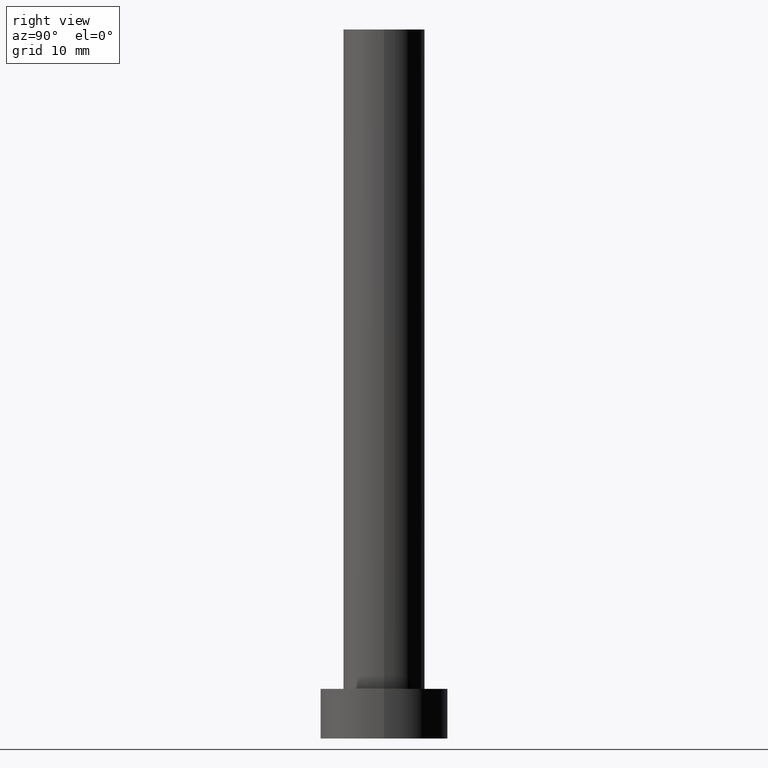
[diagram: clean part render]
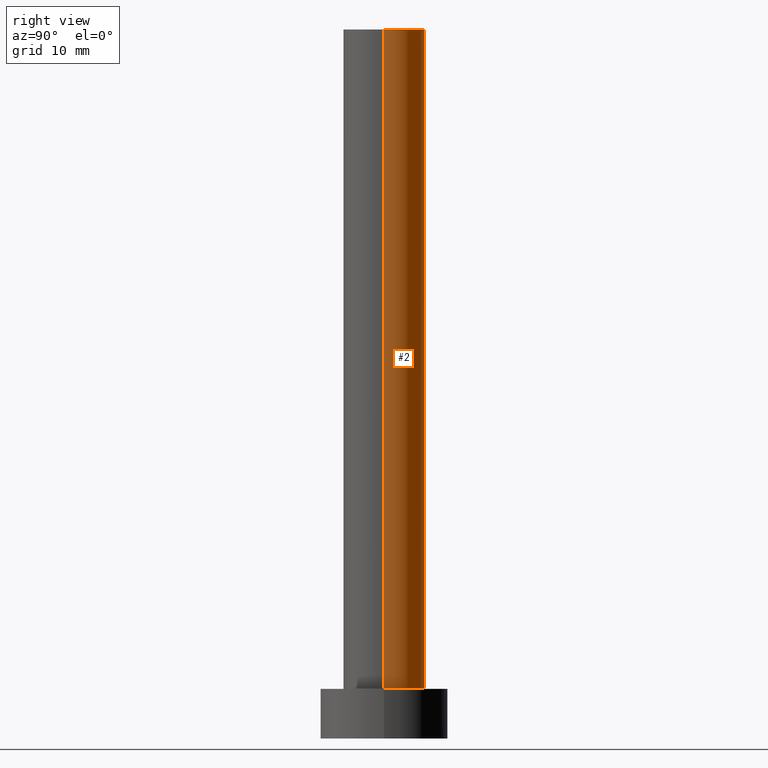
[diagram: same view with one face highlighted and labeled with its STEP entity id]
A machine part, right view. The second image highlights one B-rep face of the part: STEP entity #2.
In plain terms, the highlighted cylindrical surface (partial cylindrical patch) has radius 5.75 mm, axis along (-0, -0, -1).
Its self-contained STEP definition (entity closure, byte-faithful):
#2 = ADVANCED_FACE ( 'NONE', ( #80 ), #162, .T. ) ;
#5 = AXIS2_PLACEMENT_3D ( 'NONE', #243, #151, #91 ) ;
#15 = VECTOR ( 'NONE', #225, 1000.000000000000000 ) ;
#17 = CARTESIAN_POINT ( 'NONE',  ( 0.000000000000000000, 0.000000000000000000, 7.000000000000000000 ) ) ;
#22 = DIRECTION ( 'NONE',  ( -1.000000000000000000, 0.000000000000000000, 0.000000000000000000 ) ) ;
#31 = EDGE_CURVE ( 'NONE', #249, #190, #247, .T. ) ;
#32 = DIRECTION ( 'NONE',  ( 1.000000000000000000, 0.000000000000000000, 0.000000000000000000 ) ) ;
#36 = CARTESIAN_POINT ( 'NONE',  ( -5.750000000000000000, 0.000000000000000000, 7.000000000000000000 ) ) ;
#38 = CARTESIAN_POINT ( 'NONE',  ( -5.750000000000000000, 0.000000000000000000, 100.0000000000000000 ) ) ;
#50 = VECTOR ( 'NONE', #208, 1000.000000000000000 ) ;
#52 = CARTESIAN_POINT ( 'NONE',  ( 5.750000000000000000, 7.041719095097279894E-16, 7.000000000000000000 ) ) ;
#55 = LINE ( 'NONE', #150, #15 ) ;
#57 = CARTESIAN_POINT ( 'NONE',  ( 0.000000000000000000, 0.000000000000000000, 100.0000000000000000 ) ) ;
#61 = ORIENTED_EDGE ( 'NONE', *, *, #84, .F. ) ;
#68 = EDGE_CURVE ( 'NONE', #183, #190, #88, .T. ) ;
#77 = ORIENTED_EDGE ( 'NONE', *, *, #178, .T. ) ;
#78 = DIRECTION ( 'NONE',  ( 0.000000000000000000, 0.000000000000000000, 1.000000000000000000 ) ) ;
#80 = FACE_OUTER_BOUND ( 'NONE', #94, .T. ) ;
#84 = EDGE_CURVE ( 'NONE', #216, #249, #123, .T. ) ;
#88 = CIRCLE ( 'NONE', #233, 5.750000000000000000 ) ;
#91 = DIRECTION ( 'NONE',  ( 1.000000000000000000, 0.000000000000000000, 0.000000000000000000 ) ) ;
#94 = EDGE_LOOP ( 'NONE', ( #61, #77, #174, #202 ) ) ;
#123 = CIRCLE ( 'NONE', #5, 5.750000000000000000 ) ;
#124 = DIRECTION ( 'NONE',  ( -0.000000000000000000, -0.000000000000000000, -1.000000000000000000 ) ) ;
#150 = CARTESIAN_POINT ( 'NONE',  ( 5.750000000000000000, 7.041719095097279894E-16, 100.0000000000000000 ) ) ;
#151 = DIRECTION ( 'NONE',  ( 0.000000000000000000, 0.000000000000000000, 1.000000000000000000 ) ) ;
#162 = CYLINDRICAL_SURFACE ( 'NONE', #201, 5.750000000000000000 ) ;
#174 = ORIENTED_EDGE ( 'NONE', *, *, #68, .T. ) ;
#178 = EDGE_CURVE ( 'NONE', #216, #183, #55, .T. ) ;
#183 = VERTEX_POINT ( 'NONE', #52 ) ;
#185 = CARTESIAN_POINT ( 'NONE',  ( -5.750000000000000000, 0.000000000000000000, 100.0000000000000000 ) ) ;
#187 = CARTESIAN_POINT ( 'NONE',  ( 5.750000000000000000, 7.041719095097279894E-16, 100.0000000000000000 ) ) ;
#190 = VERTEX_POINT ( 'NONE', #36 ) ;
#201 = AXIS2_PLACEMENT_3D ( 'NONE', #57, #124, #22 ) ;
#202 = ORIENTED_EDGE ( 'NONE', *, *, #31, .F. ) ;
#208 = DIRECTION ( 'NONE',  ( -0.000000000000000000, -0.000000000000000000, -1.000000000000000000 ) ) ;
#216 = VERTEX_POINT ( 'NONE', #187 ) ;
#225 = DIRECTION ( 'NONE',  ( -0.000000000000000000, -0.000000000000000000, -1.000000000000000000 ) ) ;
#233 = AXIS2_PLACEMENT_3D ( 'NONE', #17, #78, #32 ) ;
#243 = CARTESIAN_POINT ( 'NONE',  ( 0.000000000000000000, 0.000000000000000000, 100.0000000000000000 ) ) ;
#247 = LINE ( 'NONE', #38, #50 ) ;
#249 = VERTEX_POINT ( 'NONE', #185 ) ;